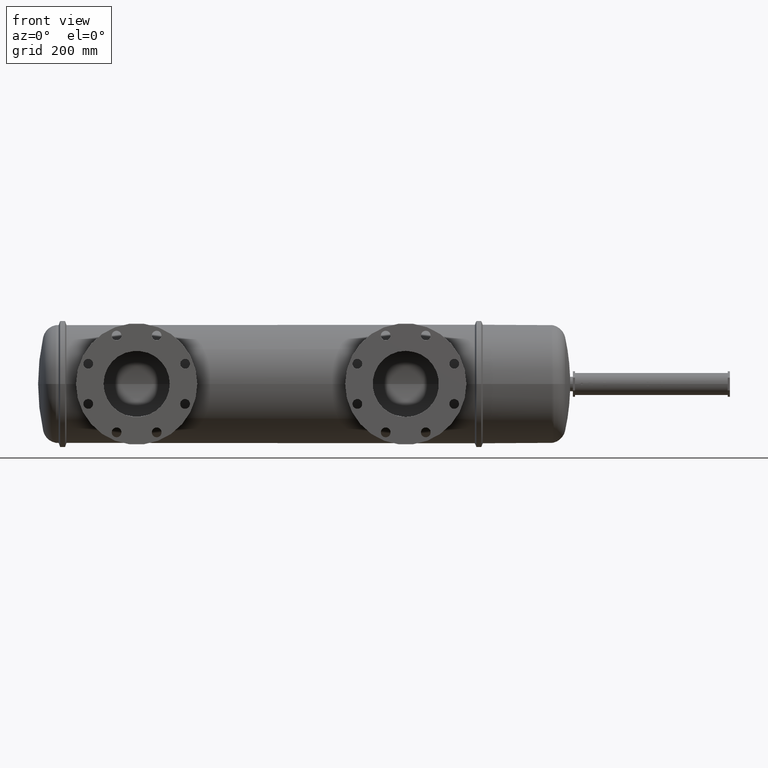
[diagram: clean part render]
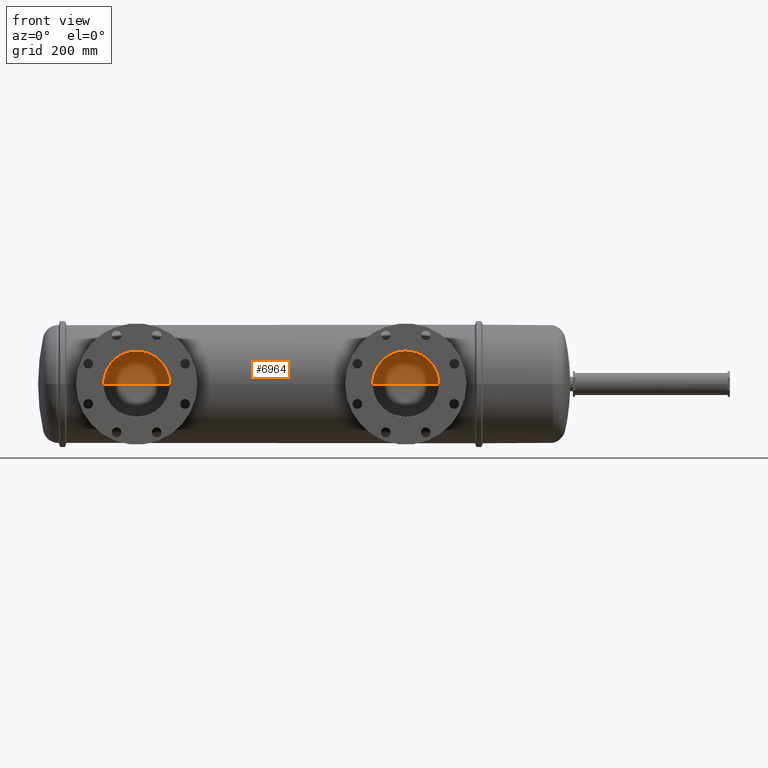
[diagram: same view with one face highlighted and labeled with its STEP entity id]
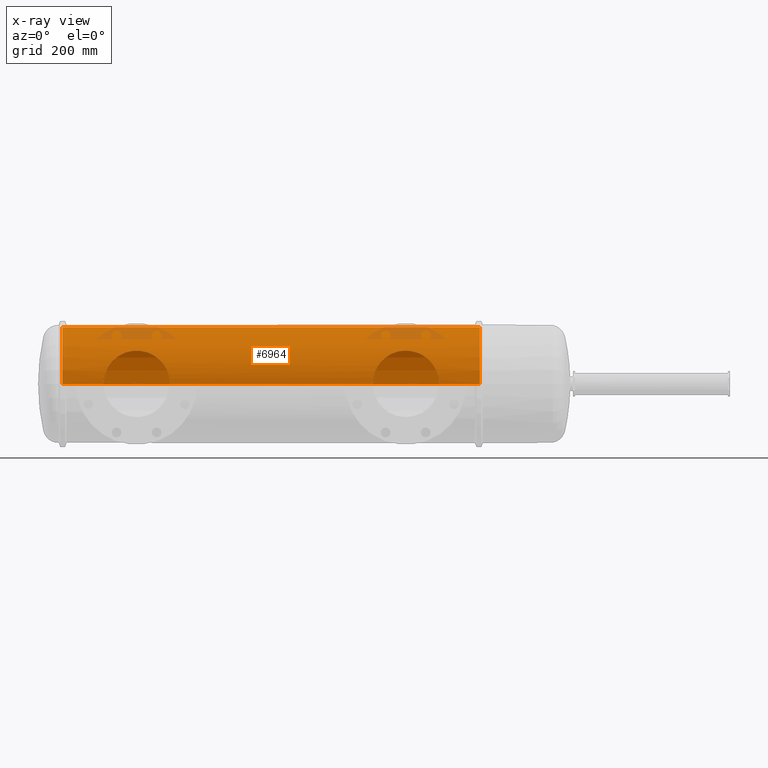
[diagram: x-ray of the same camera — body ghosted, the highlighted face saturated]
A machine part, front view. The second image highlights one B-rep face of the part: STEP entity #6964.
The next image is the same camera in x-ray: the body ghosted, the highlighted face saturated — about 5% of this face is hidden behind the body in this view.
In plain terms, the highlighted cylindrical surface (partial cylindrical patch) has radius 131.525 mm, axis along (-1, 0, -0).
Its self-contained STEP definition (entity closure, byte-faithful):
#51 = AXIS2_PLACEMENT_3D ( 'NONE', #4150, #1862, #4810 ) ;
#107 = CARTESIAN_POINT ( 'NONE',  ( 6.132129783622352700, -5.065000427486103800, 1.077668649765737500 ) ) ;
#116 = CARTESIAN_POINT ( 'NONE',  ( 31.08207429958778400, -4.782900594347088600, 1.984608928514451700 ) ) ;
#123 = CARTESIAN_POINT ( 'NONE',  ( 7.680447414336992300, -4.401476452006323600, 2.728061524933107100 ) ) ;
#131 = CIRCLE ( 'NONE', #4980, 5.178157746037729000 ) ;
#136 = CARTESIAN_POINT ( 'NONE',  ( 30.33877663524508600, -5.174424441765539800, 0.2030311780407423900 ) ) ;
#161 = CARTESIAN_POINT ( 'NONE',  ( 6.780909866095179000, -4.737193259626786300, 2.091337066775493400 ) ) ;
#187 = CARTESIAN_POINT ( 'NONE',  ( 35.70349834805749400, -4.840983310612136500, 1.838450758542728800 ) ) ;
#188 = CARTESIAN_POINT ( 'NONE',  ( 9.773907009270043700, -4.303604707897933100, 2.879647268780590500 ) ) ;
#209 = CARTESIAN_POINT ( 'NONE',  ( 10.27460988128345500, -4.428161929314297800, 2.684682270122831200 ) ) ;
#219 = CARTESIAN_POINT ( 'NONE',  ( 31.50031156164127900, -4.600552062556505300, 2.377571081990475400 ) ) ;
#230 = CARTESIAN_POINT ( 'NONE',  ( 36.33232943053631900, -5.178157431407109700, 2.221053218578038600E-019 ) ) ;
#231 = CARTESIAN_POINT ( 'NONE',  ( 11.30407828064480200, -4.841267513393175300, 1.837701983748043300 ) ) ;
#252 = CARTESIAN_POINT ( 'NONE',  ( 2.187117406565378900, 5.178158060668375900, 6.341414309165197300E-016 ) ) ;
#285 = CARTESIAN_POINT ( 'NONE',  ( 11.82758132356946700, -5.118124783114869700, 0.7921348580052330900 ) ) ;
#333 = CARTESIAN_POINT ( 'NONE',  ( 11.76729472960408500, -5.084303519518370800, 0.9825648947260339200 ) ) ;
#352 = CARTESIAN_POINT ( 'NONE',  ( 32.68661176408697600, -4.269418511876872400, 2.930106692608607700 ) ) ;
#378 = EDGE_CURVE ( 'NONE', #5034, #2015, #4202, .T. ) ;
#632 = CARTESIAN_POINT ( 'NONE',  ( 40.05530189597459400, 3.146306162045461400E-007, 0.0000000000000000000 ) ) ;
#668 = CARTESIAN_POINT ( 'NONE',  ( 5.933620563382050700, -5.177409084163037400, 0.1016249666666535200 ) ) ;
#679 = VERTEX_POINT ( 'NONE', #6874 ) ;
#705 = CARTESIAN_POINT ( 'NONE',  ( 8.960113369240108500, -4.220597372991298000, 2.999978800376406500 ) ) ;
#728 = CARTESIAN_POINT ( 'NONE',  ( 34.17205102720927100, -4.303242060481991900, 2.880189127126532500 ) ) ;
#729 = CARTESIAN_POINT ( 'NONE',  ( 7.860436805809033700, -4.353704193452843500, 2.803671604763812400 ) ) ;
#744 = CARTESIAN_POINT ( 'NONE',  ( 35.67364830612081800, -4.826423713049392100, 1.876309036350974900 ) ) ;
#745 = CARTESIAN_POINT ( 'NONE',  ( 7.298388119595737000, -4.525670459833230000, 2.516458799455258100 ) ) ;
#775 = CARTESIAN_POINT ( 'NONE',  ( 35.58169561753253200, -4.782266364031826800, 1.987357659064009000 ) ) ;
#792 = CARTESIAN_POINT ( 'NONE',  ( 30.37302067367088700, -5.154663506644064700, 0.5023953184371360300 ) ) ;
#800 = DIRECTION ( 'NONE',  ( -1.000000000000000000, 8.273921759108280900E-016, -0.0000000000000000000 ) ) ;
#801 = ORIENTED_EDGE ( 'NONE', *, *, #3430, .F. ) ;
#802 = CARTESIAN_POINT ( 'NONE',  ( 11.39037880817580900, -4.884134477862518900, 1.720570218087032800 ) ) ;
#815 = CARTESIAN_POINT ( 'NONE',  ( 32.25877537387184900, -4.354115088078390100, 2.803033949583300500 ) ) ;
#823 = CARTESIAN_POINT ( 'NONE',  ( 36.16713495678045800, -5.084214396202776600, 0.9830268976330951400 ) ) ;
#824 = CARTESIAN_POINT ( 'NONE',  ( 10.68491040287784500, -4.569855752310315800, 2.435322389492509100 ) ) ;
#835 = CARTESIAN_POINT ( 'NONE',  ( 31.99135847542118000, -4.427751050239586500, 2.685369627902153900 ) ) ;
#845 = CARTESIAN_POINT ( 'NONE',  ( 11.73325056874330700, -5.065399615629425900, 1.075780087569782500 ) ) ;
#967 = ORIENTED_EDGE ( 'NONE', *, *, #2066, .T. ) ;
#1035 = EDGE_CURVE ( 'NONE', #3441, #3276, #2185, .T. ) ;
#1036 = DIRECTION ( 'NONE',  ( -8.441142592087756100E-016, -1.000000000000000000, 0.0000000000000000000 ) ) ;
#1096 = CYLINDRICAL_SURFACE ( 'NONE', #51, 5.178157746037729000 ) ;
#1176 = DIRECTION ( 'NONE',  ( -1.000000000000000000, 8.273921759108280900E-016, -0.0000000000000000000 ) ) ;
#1219 = CARTESIAN_POINT ( 'NONE',  ( 8.732626623186558100, -4.224137485806221700, 2.995016964675891700 ) ) ;
#1223 = ORIENTED_EDGE ( 'NONE', *, *, #7176, .T. ) ;
#1244 = CARTESIAN_POINT ( 'NONE',  ( 5.942638784679549400, -5.172189791694425900, 0.2535430016418686600 ) ) ;
#1266 = CARTESIAN_POINT ( 'NONE',  ( 9.036165591199043900, -4.221783555818104700, 2.998309399489690600 ) ) ;
#1274 = CARTESIAN_POINT ( 'NONE',  ( 30.35789871826110100, -5.163379065188957300, 0.4035950930598792800 ) ) ;
#1285 = CARTESIAN_POINT ( 'NONE',  ( 36.29188997538356900, -5.154808179985380400, 0.5009137549546651700 ) ) ;
#1286 = CARTESIAN_POINT ( 'NONE',  ( 6.150312574428442100, -5.054965326579143400, 1.123746928113599400 ) ) ;
#1306 = CARTESIAN_POINT ( 'NONE',  ( 30.33232943053631200, -5.178157431407103500, 0.05079185256833555100 ) ) ;
#1320 = CARTESIAN_POINT ( 'NONE',  ( 9.916554410793496600, -4.332825831696729900, 2.835698707943691900 ) ) ;
#1357 = CARTESIAN_POINT ( 'NONE',  ( 35.08379632791847800, -4.569428370642675000, 2.436124161706173700 ) ) ;
#1368 = CARTESIAN_POINT ( 'NONE',  ( 32.49331835164987600, -4.302917681004957200, 2.880715972374405800 ) ) ;
#1384 = CARTESIAN_POINT ( 'NONE',  ( 36.30692985252759500, -5.163476919684364400, 0.4022573141267225000 ) ) ;
#1410 = CARTESIAN_POINT ( 'NONE',  ( 11.27425352614445100, -4.826717473442596600, 1.875553018355759600 ) ) ;
#1421 = CARTESIAN_POINT ( 'NONE',  ( 32.63808035161984100, -4.277035690248133000, 2.918990048941128500 ) ) ;
#1491 = EDGE_LOOP ( 'NONE', ( #4512, #4145, #967, #4813, #3066, #4301, #801, #2473, #1223 ) ) ;
#1595 = VERTEX_POINT ( 'NONE', #3810 ) ;
#1728 = VECTOR ( 'NONE', #1176, 39.37007874015748100 ) ;
#1763 = CARTESIAN_POINT ( 'NONE',  ( 5.932329430536313500, -5.178157431407084000, 0.05081678761601077200 ) ) ;
#1781 = CARTESIAN_POINT ( 'NONE',  ( 10.52582391728174500, -4.510768448560307700, 2.543624729198071100 ) ) ;
#1787 = CARTESIAN_POINT ( 'NONE',  ( 40.05530189597459400, -5.178157431407112400, 0.0000000000000000000 ) ) ;
#1799 = CARTESIAN_POINT ( 'NONE',  ( 9.581099392375374900, -4.269881656913376000, 2.929431962233594300 ) ) ;
#1808 = FACE_OUTER_BOUND ( 'NONE', #1491, .T. ) ;
#1810 = VECTOR ( 'NONE', #4370, 39.37007874015748100 ) ;
#1831 = CARTESIAN_POINT ( 'NONE',  ( 9.629574187749932800, -4.277523884038719100, 2.918274783802058200 ) ) ;
#1843 = CARTESIAN_POINT ( 'NONE',  ( 30.41283439087824900, -5.131909863703159900, 0.6974654743138624100 ) ) ;
#1857 = CARTESIAN_POINT ( 'NONE',  ( 8.240030918852042400, -4.276719137574667200, 2.919453665659927000 ) ) ;
#1862 = DIRECTION ( 'NONE',  ( -1.000000000000000000, 8.273921759108280900E-016, -0.0000000000000000000 ) ) ;
#1879 = CARTESIAN_POINT ( 'NONE',  ( 34.40699041287948000, -4.354394624027480500, 2.802597554749298900 ) ) ;
#1880 = CARTESIAN_POINT ( 'NONE',  ( 7.422523259511749000, -4.482332475924586400, 2.592845623736451900 ) ) ;
#1901 = CARTESIAN_POINT ( 'NONE',  ( 33.35772971648583500, -4.220582304256315500, 3.000000000000002200 ) ) ;
#1902 = CARTESIAN_POINT ( 'NONE',  ( 11.93232943053631500, -5.178157431407088400, 3.676161461902457600E-016 ) ) ;
#1921 = CARTESIAN_POINT ( 'NONE',  ( 30.33232943053631200, -5.178157431407103500, -1.965551293642552400E-019 ) ) ;
#1937 = CARTESIAN_POINT ( 'NONE',  ( 11.93232943053631900, -5.178157431407088400, 0.05054794162473737200 ) ) ;
#1951 = CARTESIAN_POINT ( 'NONE',  ( 33.33232943053631200, -4.220582304256315500, 3.000000000000001800 ) ) ;
#1962 = CARTESIAN_POINT ( 'NONE',  ( 33.58476294212965700, -4.227832472132765100, 2.989780209850776000 ) ) ;
#1989 = CARTESIAN_POINT ( 'NONE',  ( 33.23082794620027200, -4.220582304256316400, 3.000000000000003100 ) ) ;
#2015 = VERTEX_POINT ( 'NONE', #252 ) ;
#2066 = EDGE_CURVE ( 'NONE', #2283, #3276, #4925, .T. ) ;
#2168 = LINE ( 'NONE', #4968, #5383 ) ;
#2185 = B_SPLINE_CURVE_WITH_KNOTS ( 'NONE', 3,
 ( #6576, #1901, #4854, #5938, #4805, #6036, #1962, #7127, #3702, #6624, #4205, #7198, #3676, #728, #6603, #5981, #1879, #5964, #6000, #3139, #3042, #7096, #1357, #2430, #6545, #2495, #7150, #4235, #775, #744, #187, #2536, #3625, #3115, #3642, #4277, #4161, #7168, #3715, #823, #4881, #6522, #5432, #1285, #1384, #5354, #5452, #4823, #2466, #230 ),
 .UNSPECIFIED., .F., .F.,
 ( 4, 2, 2, 2, 2, 2, 2, 2, 2, 2, 2, 2, 2, 2, 2, 2, 2, 2, 2, 2, 2, 2, 2, 2, 4 ),
 ( 0.1254851167505265400, 0.1274219353923867200, 0.1293587540342469000, 0.1332323913179672700, 0.1409796658854080000, 0.1448533031691285300, 0.1467901218109887700, 0.1487269404528490400, 0.1564742150202900200, 0.1642214895877310300, 0.1719687641551720400, 0.1758424014388925400, 0.1797160387226130500, 0.1874633132900538100, 0.1952105878574945700, 0.1990842251412149600, 0.2029578624249353500, 0.2107051369923761400, 0.2184524115598169300, 0.2223260488435374000, 0.2261996861272578800, 0.2339469606946989500, 0.2416942352621400100, 0.2455678725458604900, 0.2494415098295809900 ),
 .UNSPECIFIED. ) ;
#2219 = AXIS2_PLACEMENT_3D ( 'NONE', #632, #4075, #2272 ) ;
#2272 = DIRECTION ( 'NONE',  ( 0.0000000000000000000, -1.000000000000000000, 0.0000000000000000000 ) ) ;
#2283 = VERTEX_POINT ( 'NONE', #1787 ) ;
#2302 = CARTESIAN_POINT ( 'NONE',  ( 5.449043687918921900E-006, -5.178157431407078600, 0.0000000000000000000 ) ) ;
#2361 = CARTESIAN_POINT ( 'NONE',  ( 7.952785157509903300, -4.331765243466740900, 2.837316004244636600 ) ) ;
#2394 = CARTESIAN_POINT ( 'NONE',  ( 5.957923580181439900, -5.163364730206655700, 0.4037903958673881900 ) ) ;
#2398 = B_SPLINE_CURVE_WITH_KNOTS ( 'NONE', 3,
 ( #5810, #1763, #668, #4745, #1244, #2394, #2976, #6523, #7128, #3533, #4206, #107, #1286, #2955, #7047, #3004, #2413, #3603, #5355, #4723, #6493, #3643, #161, #3570, #7069, #6546, #4162, #745, #5306, #1880, #5884, #5965, #123, #729, #2361, #2431, #4146, #1857, #4703, #4125, #7021, #1219, #5939, #705, #6434, #1266, #3069, #5270, #5328, #3043, #7097, #1799, #1831, #5902, #3626, #188, #4806, #1320, #5379, #2467, #209, #4236, #1781, #5861, #824, #4897, #7151, #6078, #3677, #4914, #5453, #1410, #231, #4254, #802, #2519, #7199, #6604, #3116, #6577, #845, #333, #4278, #285, #6037, #3140, #7245, #4335, #2594, #6685, #1937, #1902 ),
 .UNSPECIFIED., .F., .F.,
 ( 4, 2, 2, 2, 2, 2, 2, 2, 2, 2, 2, 2, 2, 2, 2, 2, 2, 2, 2, 2, 2, 2, 2, 2, 2, 2, 2, 2, 2, 2, 2, 2, 2, 2, 2, 2, 2, 2, 2, 2, 2, 2, 2, 2, 2, 4 ),
 ( 0.001650311155501412500, 0.005522048634783895500, 0.009393786114066379100, 0.01713726107263134300, 0.02488073603119630600, 0.02875247351047879500, 0.03262421098976128100, 0.04036768594832623000, 0.04811116090689117300, 0.05585463586545610200, 0.05972637334473854300, 0.06359811082402099000, 0.07134158578258592600, 0.07908506074115084800, 0.08295679822043335000, 0.08682853569971586700, 0.09457201065828081700, 0.1023154856168457500, 0.1061872230961281900, 0.1100589605754106300, 0.1178024355339756000, 0.1255459104925405500, 0.1274817792321817900, 0.1294176479718230400, 0.1332893854511056100, 0.1410328604096708100, 0.1449045978889534100, 0.1468404666285946800, 0.1487763353682359500, 0.1565198103268010100, 0.1642632852853660500, 0.1720067602439311100, 0.1758784977232135400, 0.1797502352024960000, 0.1874937101610610100, 0.1952371851196260400, 0.1991089225989085600, 0.2029806600781910400, 0.2107241350367561300, 0.2184676099953212200, 0.2223393474746037400, 0.2262110849538862300, 0.2339545599124512300, 0.2416980348710162100, 0.2455697723502987500, 0.2494415098295812400 ),
 .UNSPECIFIED. ) ;
#2403 = CARTESIAN_POINT ( 'NONE',  ( 30.74240179073791200, -4.951717250540275100, 1.517117393343673700 ) ) ;
#2413 = CARTESIAN_POINT ( 'NONE',  ( 6.392882950998162200, -4.925438491008159200, 1.600150941068455300 ) ) ;
#2422 = CARTESIAN_POINT ( 'NONE',  ( 30.79245582446174000, -4.925659141234051600, 1.599470051346641600 ) ) ;
#2430 = CARTESIAN_POINT ( 'NONE',  ( 35.16138252440735100, -4.599725485607052600, 2.378424269064485200 ) ) ;
#2431 = CARTESIAN_POINT ( 'NONE',  ( 8.095174384245508400, -4.302555701337427200, 2.881256444879602100 ) ) ;
#2466 = CARTESIAN_POINT ( 'NONE',  ( 36.33232943053630500, -5.178157431407110600, 0.05057274475365461400 ) ) ;
#2467 = CARTESIAN_POINT ( 'NONE',  ( 10.18767493473605500, -4.402472309595165900, 2.726452971105715500 ) ) ;
#2473 = ORIENTED_EDGE ( 'NONE', *, *, #6618, .T. ) ;
#2482 = CARTESIAN_POINT ( 'NONE',  ( 30.49769194920315800, -5.084120502473656000, 0.9835222085378513300 ) ) ;
#2495 = CARTESIAN_POINT ( 'NONE',  ( 35.31084965528303600, -4.660823106017251600, 2.257144114654325900 ) ) ;
#2519 = CARTESIAN_POINT ( 'NONE',  ( 11.47215404985069800, -4.925628567211457900, 1.599614133549825500 ) ) ;
#2536 = CARTESIAN_POINT ( 'NONE',  ( 35.76157764087997000, -4.869694469635412300, 1.760993003832504800 ) ) ;
#2594 = CARTESIAN_POINT ( 'NONE',  ( 11.92592585846199800, -5.174449691877492300, 0.2023137012950311800 ) ) ;
#2603 = CARTESIAN_POINT ( 'NONE',  ( 31.86332709210497400, -4.468741215612150900, 2.616177634434193600 ) ) ;
#2604 = CARTESIAN_POINT ( 'NONE',  ( 40.05530189597459400, 5.178158060668344800, 6.341414309165177500E-016 ) ) ;
#2955 = CARTESIAN_POINT ( 'NONE',  ( 6.207883313296466800, -5.023434078467797500, 1.259798848510733900 ) ) ;
#2976 = CARTESIAN_POINT ( 'NONE',  ( 5.973060125111573800, -5.154640807257831800, 0.5026372187685241900 ) ) ;
#3004 = CARTESIAN_POINT ( 'NONE',  ( 6.342783761968198600, -4.951517185594962500, 1.517772143968418200 ) ) ;
#3026 = CARTESIAN_POINT ( 'NONE',  ( 31.05029742356694900, -4.797942777885779700, 1.947991097990023500 ) ) ;
#3042 = CARTESIAN_POINT ( 'NONE',  ( 34.92458667988656600, -4.510330461275122700, 2.544401063597741400 ) ) ;
#3043 = CARTESIAN_POINT ( 'NONE',  ( 9.336384011788947400, -4.238715333571161800, 2.974350663147551400 ) ) ;
#3066 = ORIENTED_EDGE ( 'NONE', *, *, #3880, .F. ) ;
#3069 = CARTESIAN_POINT ( 'NONE',  ( 9.061408206097903300, -4.222480726134494800, 2.997327814610315100 ) ) ;
#3111 = CARTESIAN_POINT ( 'NONE',  ( 5.449043696487656300E-006, 5.178158060668378600, 6.341414309165177500E-016 ) ) ;
#3115 = CARTESIAN_POINT ( 'NONE',  ( 35.87172324828181000, -4.925406004625007700, 1.600300953275943600 ) ) ;
#3116 = CARTESIAN_POINT ( 'NONE',  ( 11.65780006218006700, -5.023990546692352200, 1.257567132194306700 ) ) ;
#3139 = CARTESIAN_POINT ( 'NONE',  ( 34.84238309174961000, -4.481869228889935100, 2.594028373614108800 ) ) ;
#3140 = CARTESIAN_POINT ( 'NONE',  ( 11.89192918745933600, -5.154830743328325600, 0.5006723563388272300 ) ) ;
#3225 = CARTESIAN_POINT ( 'NONE',  ( 30.33232943053631200, -5.178157431407103500, -1.965551293642552400E-019 ) ) ;
#3276 = VERTEX_POINT ( 'NONE', #3913 ) ;
#3373 = DIRECTION ( 'NONE',  ( -1.000000000000000000, 8.273921759108280900E-016, -0.0000000000000000000 ) ) ;
#3430 = EDGE_CURVE ( 'NONE', #1595, #5260, #2398, .T. ) ;
#3441 = VERTEX_POINT ( 'NONE', #3777 ) ;
#3533 = CARTESIAN_POINT ( 'NONE',  ( 6.081881646681528000, -5.092957692427448000, 0.9367093237544839000 ) ) ;
#3544 = CARTESIAN_POINT ( 'NONE',  ( 30.60762270747199000, -5.023575612418049700, 1.259231670353233100 ) ) ;
#3570 = CARTESIAN_POINT ( 'NONE',  ( 6.882759764117143900, -4.691520777707878200, 2.192818200173287200 ) ) ;
#3603 = CARTESIAN_POINT ( 'NONE',  ( 6.500721261454039300, -4.870715987270087600, 1.759702579612058200 ) ) ;
#3625 = CARTESIAN_POINT ( 'NONE',  ( 35.78987178335368900, -4.883879215012683500, 1.721295038560735500 ) ) ;
#3626 = CARTESIAN_POINT ( 'NONE',  ( 9.725945620869969900, -4.294483359394158500, 2.893232544415179000 ) ) ;
#3635 = CARTESIAN_POINT ( 'NONE',  ( 30.90019612323288800, -4.870978597745153000, 1.758974120188926000 ) ) ;
#3642 = CARTESIAN_POINT ( 'NONE',  ( 35.92221386087485500, -4.951693001148214500, 1.517225759285674400 ) ) ;
#3643 = CARTESIAN_POINT ( 'NONE',  ( 6.747699700264759800, -4.752377882352123900, 2.056627270838623300 ) ) ;
#3661 = CARTESIAN_POINT ( 'NONE',  ( 30.95788184332292300, -4.842354460542809500, 1.836125336217657100 ) ) ;
#3676 = CARTESIAN_POINT ( 'NONE',  ( 34.12405944598054200, -4.294135104333387100, 2.893749358631729300 ) ) ;
#3677 = CARTESIAN_POINT ( 'NONE',  ( 10.98263013096593400, -4.691843071951670800, 2.192120434828105100 ) ) ;
#3702 = CARTESIAN_POINT ( 'NONE',  ( 33.83282305937946400, -4.249056778453596200, 2.959630438224571100 ) ) ;
#3715 = CARTESIAN_POINT ( 'NONE',  ( 36.13305946191818700, -5.065293908108536400, 1.076278562645460700 ) ) ;
#3777 = CARTESIAN_POINT ( 'NONE',  ( 33.33232943053631200, -4.220582304256315500, 3.000000000000001800 ) ) ;
#3810 = CARTESIAN_POINT ( 'NONE',  ( 5.932329430536313500, -5.178157431407083100, -1.965581824423035500E-019 ) ) ;
#3880 = EDGE_CURVE ( 'NONE', #4034, #3441, #5909, .T. ) ;
#3913 = CARTESIAN_POINT ( 'NONE',  ( 36.33232943053631900, -5.178157431407109700, 2.221053218578038600E-019 ) ) ;
#4034 = VERTEX_POINT ( 'NONE', #3225 ) ;
#4075 = DIRECTION ( 'NONE',  ( -1.000000000000000000, 8.273921759108280900E-016, -0.0000000000000000000 ) ) ;
#4085 = CIRCLE ( 'NONE', #2219, 5.178157746037729000 ) ;
#4125 = CARTESIAN_POINT ( 'NONE',  ( 8.434992995686151600, -4.248684298821837400, 2.960164227454401300 ) ) ;
#4128 = CARTESIAN_POINT ( 'NONE',  ( 11.93232943053631500, -5.178157431407088400, 3.676161461902457600E-016 ) ) ;
#4145 = ORIENTED_EDGE ( 'NONE', *, *, #7291, .F. ) ;
#4146 = CARTESIAN_POINT ( 'NONE',  ( 8.143379717564069900, -4.293424156952618800, 2.894830787043771700 ) ) ;
#4150 = CARTESIAN_POINT ( 'NONE',  ( 5.449043692203289100E-006, 3.146306493459850400E-007, 0.0000000000000000000 ) ) ;
#4153 = CARTESIAN_POINT ( 'NONE',  ( 31.14695604173982300, -4.752719937940477200, 2.055836546284654600 ) ) ;
#4161 = CARTESIAN_POINT ( 'NONE',  ( 36.05753977345992200, -5.023849155272357000, 1.258134621923322300 ) ) ;
#4162 = CARTESIAN_POINT ( 'NONE',  ( 7.178241638201555500, -4.569966650197350200, 2.435670832563007000 ) ) ;
#4178 = CARTESIAN_POINT ( 'NONE',  ( 31.18013866208647800, -4.737543732078154200, 2.090542910626461900 ) ) ;
#4202 = LINE ( 'NONE', #3111, #4664 ) ;
#4205 = CARTESIAN_POINT ( 'NONE',  ( 34.02762713474671600, -4.277206567737190200, 2.918739687401524100 ) ) ;
#4206 = CARTESIAN_POINT ( 'NONE',  ( 6.097852925780145500, -5.084030715081987700, 0.9839871570555395200 ) ) ;
#4235 = CARTESIAN_POINT ( 'NONE',  ( 35.51719810145904400, -4.752189247152201400, 2.058028865838323900 ) ) ;
#4236 = CARTESIAN_POINT ( 'NONE',  ( 10.44368471870454800, -4.482309230382465900, 2.593268380421846600 ) ) ;
#4246 = CARTESIAN_POINT ( 'NONE',  ( 30.34262872094329200, -5.172195612104359500, 0.2534194790776209700 ) ) ;
#4254 = CARTESIAN_POINT ( 'NONE',  ( 11.36210841277717500, -4.869959385121192400, 1.760260005375047900 ) ) ;
#4277 = CARTESIAN_POINT ( 'NONE',  ( 36.01512204027263700, -5.000913753604781000, 1.346142332851178800 ) ) ;
#4278 = CARTESIAN_POINT ( 'NONE',  ( 11.78329391746057400, -5.093246880023899700, 0.9351426541664310500 ) ) ;
#4301 = ORIENTED_EDGE ( 'NONE', *, *, #7296, .T. ) ;
#4335 = CARTESIAN_POINT ( 'NONE',  ( 11.92210787302647500, -5.172240570140079500, 0.2524620442872648200 ) ) ;
#4370 = DIRECTION ( 'NONE',  ( -1.000000000000000000, 8.273921759108280900E-016, -0.0000000000000000000 ) ) ;
#4512 = ORIENTED_EDGE ( 'NONE', *, *, #378, .F. ) ;
#4664 = VECTOR ( 'NONE', #800, 39.37007874015748100 ) ;
#4703 = CARTESIAN_POINT ( 'NONE',  ( 8.288592553527793800, -4.269119003536532700, 2.930542915384770200 ) ) ;
#4723 = CARTESIAN_POINT ( 'NONE',  ( 6.650961392141978100, -4.797626860696730900, 1.948769289121272900 ) ) ;
#4731 = CARTESIAN_POINT ( 'NONE',  ( 30.48173709335149800, -5.093038626794083300, 0.9362680116066657300 ) ) ;
#4745 = CARTESIAN_POINT ( 'NONE',  ( 5.938782951778238200, -5.174420786637827300, 0.2031304588551747500 ) ) ;
#4793 = CARTESIAN_POINT ( 'NONE',  ( 31.28190372326666900, -4.691895529833639800, 2.192015848221161800 ) ) ;
#4805 = CARTESIAN_POINT ( 'NONE',  ( 33.45909394649512300, -4.222410512409089400, 2.997426713704395500 ) ) ;
#4806 = CARTESIAN_POINT ( 'NONE',  ( 9.797854853850722600, -4.308353463059212600, 2.872539575875527400 ) ) ;
#4810 = DIRECTION ( 'NONE',  ( -8.273921871325367800E-016, -1.000000000000000000, 0.0000000000000000000 ) ) ;
#4813 = ORIENTED_EDGE ( 'NONE', *, *, #1035, .F. ) ;
#4823 = CARTESIAN_POINT ( 'NONE',  ( 36.33103793433871700, -5.177408880985738400, 0.1014898886268503600 ) ) ;
#4833 = CARTESIAN_POINT ( 'NONE',  ( 31.57713367408557700, -4.570393222809987500, 2.434870364100072400 ) ) ;
#4854 = CARTESIAN_POINT ( 'NONE',  ( 33.38317441279975400, -4.220812575010731000, 2.999676118577597100 ) ) ;
#4870 = CARTESIAN_POINT ( 'NONE',  ( 32.35104844279769800, -4.332160138887577000, 2.836713598347835300 ) ) ;
#4881 = CARTESIAN_POINT ( 'NONE',  ( 36.18314907309071100, -5.093165775197388000, 0.9355854629688539200 ) ) ;
#4892 = CARTESIAN_POINT ( 'NONE',  ( 31.82120554259653000, -4.482776793228620000, 2.592077454290751400 ) ) ;
#4897 = CARTESIAN_POINT ( 'NONE',  ( 10.76243709810133400, -4.600145170332171900, 2.377612485350967500 ) ) ;
#4914 = CARTESIAN_POINT ( 'NONE',  ( 11.11793646571481300, -4.752529486880942700, 2.057242535714107800 ) ) ;
#4925 = LINE ( 'NONE', #6073, #1810 ) ;
#4968 = CARTESIAN_POINT ( 'NONE',  ( 5.449043687918921900E-006, -5.178157431407078600, 0.0000000000000000000 ) ) ;
#4980 = AXIS2_PLACEMENT_3D ( 'NONE', #6867, #3373, #1036 ) ;
#5034 = VERTEX_POINT ( 'NONE', #2604 ) ;
#5260 = VERTEX_POINT ( 'NONE', #4128 ) ;
#5270 = CARTESIAN_POINT ( 'NONE',  ( 9.136927139915636400, -4.225238913083443600, 2.993439695645332400 ) ) ;
#5306 = CARTESIAN_POINT ( 'NONE',  ( 7.339309443981237600, -4.511042275368556200, 2.542567683470628100 ) ) ;
#5328 = CARTESIAN_POINT ( 'NONE',  ( 9.186994636169473000, -4.227966709781679100, 2.989590461257060700 ) ) ;
#5342 = CARTESIAN_POINT ( 'NONE',  ( 30.53193763208461700, -5.065106698767013200, 1.077168213618625400 ) ) ;
#5354 = CARTESIAN_POINT ( 'NONE',  ( 36.32209790013158800, -5.172234802184789300, 0.2525849412252650900 ) ) ;
#5355 = CARTESIAN_POINT ( 'NONE',  ( 6.558459832007116600, -4.842070470642900300, 1.836875228342040900 ) ) ;
#5365 = CARTESIAN_POINT ( 'NONE',  ( 31.35269606334977900, -4.661302182715983700, 2.256143934546237100 ) ) ;
#5379 = CARTESIAN_POINT ( 'NONE',  ( 10.00864634113221500, -4.354805187820399000, 2.801960036569220300 ) ) ;
#5383 = VECTOR ( 'NONE', #6739, 39.37007874015748100 ) ;
#5432 = CARTESIAN_POINT ( 'NONE',  ( 36.25216499328733000, -5.132103709164512800, 0.6960413026637787300 ) ) ;
#5442 = CARTESIAN_POINT ( 'NONE',  ( 32.83292071087925000, -4.248928890028522300, 2.959813688404828300 ) ) ;
#5452 = CARTESIAN_POINT ( 'NONE',  ( 36.32591960016762300, -5.174446070422492400, 0.2024124120628272600 ) ) ;
#5453 = CARTESIAN_POINT ( 'NONE',  ( 11.18237894071879500, -4.782588358271437000, 1.986581883220789500 ) ) ;
#5463 = CARTESIAN_POINT ( 'NONE',  ( 33.13036546612329400, -4.224246561040576600, 2.994863457050142200 ) ) ;
#5810 = CARTESIAN_POINT ( 'NONE',  ( 5.932329430536313500, -5.178157431407083100, -1.965581824423035500E-019 ) ) ;
#5861 = CARTESIAN_POINT ( 'NONE',  ( 10.64557233511249400, -4.554902760204356600, 2.463150748632407800 ) ) ;
#5884 = CARTESIAN_POINT ( 'NONE',  ( 7.464677105257643500, -4.468297290703503700, 2.616935658568639400 ) ) ;
#5902 = CARTESIAN_POINT ( 'NONE',  ( 9.701900956544712100, -4.290103917257647800, 2.899720530959202700 ) ) ;
#5909 = B_SPLINE_CURVE_WITH_KNOTS ( 'NONE', 3,
 ( #1921, #1306, #7140, #136, #4246, #1274, #792, #1843, #6534, #4731, #2482, #5342, #7117, #3544, #6477, #2403, #2422, #3635, #3661, #3026, #116, #4153, #4178, #4793, #5365, #219, #4833, #5991, #6593, #4892, #2603, #835, #6613, #815, #4870, #1368, #6088, #1421, #352, #5442, #6664, #5463, #1989, #1951 ),
 .UNSPECIFIED., .F., .F.,
 ( 4, 2, 2, 2, 2, 2, 2, 2, 2, 2, 2, 2, 2, 2, 2, 2, 2, 2, 2, 2, 2, 4 ),
 ( 0.001650311155501183100, 0.005520148830345624600, 0.009389986505190066300, 0.01712966185487891500, 0.02486933720456776700, 0.02873917487941217800, 0.03260901255425659900, 0.04034868790394553800, 0.04808836325363448300, 0.05582803860332342900, 0.05969787627816800600, 0.06356771395301258300, 0.07130738930270152900, 0.07904706465239048900, 0.08291690232723494800, 0.08678674000207942100, 0.09452641535176864500, 0.1022660907014578800, 0.1061359283763026600, 0.1100057660511474200, 0.1177454414008369800, 0.1254851167505265400 ),
 .UNSPECIFIED. ) ;
#5938 = CARTESIAN_POINT ( 'NONE',  ( 33.43383463963163400, -4.221726766152158000, 2.998389354488947100 ) ) ;
#5939 = CARTESIAN_POINT ( 'NONE',  ( 8.833153774501305100, -4.220525418515463500, 3.000080030361530300 ) ) ;
#5964 = CARTESIAN_POINT ( 'NONE',  ( 34.58616784382135700, -4.402041236907673600, 2.727148421745390300 ) ) ;
#5965 = CARTESIAN_POINT ( 'NONE',  ( 7.592807393666659800, -4.427311163734506400, 2.686094389383298300 ) ) ;
#5981 = CARTESIAN_POINT ( 'NONE',  ( 34.31482019068133800, -4.332430300110102600, 2.836302407689552700 ) ) ;
#5991 = CARTESIAN_POINT ( 'NONE',  ( 31.69717382737860900, -4.526109307835450400, 2.515669416243088800 ) ) ;
#6000 = CARTESIAN_POINT ( 'NONE',  ( 34.67317332431911600, -4.427725387452569300, 2.685401816370157800 ) ) ;
#6036 = CARTESIAN_POINT ( 'NONE',  ( 33.53466265803063400, -4.225129459184652000, 2.993594136016384700 ) ) ;
#6037 = CARTESIAN_POINT ( 'NONE',  ( 11.85224265071244600, -5.132147942023572700, 0.6957084994603126600 ) ) ;
#6073 = CARTESIAN_POINT ( 'NONE',  ( 5.449043687918921900E-006, -5.178157431407078600, 0.0000000000000000000 ) ) ;
#6078 = CARTESIAN_POINT ( 'NONE',  ( 10.91176696512385500, -4.661213539850567000, 2.256337487586026000 ) ) ;
#6088 = CARTESIAN_POINT ( 'NONE',  ( 32.54148908271493900, -4.293772345768980300, 2.894314466959575500 ) ) ;
#6094 = LINE ( 'NONE', #2302, #1728 ) ;
#6434 = CARTESIAN_POINT ( 'NONE',  ( 8.985538956094949000, -4.220841823394682300, 2.999634969411982600 ) ) ;
#6477 = CARTESIAN_POINT ( 'NONE',  ( 30.64998573131145700, -5.000674578481464600, 1.346997640609046700 ) ) ;
#6493 = CARTESIAN_POINT ( 'NONE',  ( 6.682764229015726100, -4.782575880754347300, 1.985391445949922000 ) ) ;
#6522 = CARTESIAN_POINT ( 'NONE',  ( 36.22747975602956700, -5.118067212810978500, 0.7925123118075511100 ) ) ;
#6523 = CARTESIAN_POINT ( 'NONE',  ( 6.012912240755013300, -5.131865525531702100, 0.6977981568690444500 ) ) ;
#6534 = CARTESIAN_POINT ( 'NONE',  ( 30.43752679015381800, -5.117870858271349000, 0.7937351716618181700 ) ) ;
#6545 = CARTESIAN_POINT ( 'NONE',  ( 35.19942188798067000, -4.614997588561264400, 2.348675416882245200 ) ) ;
#6546 = CARTESIAN_POINT ( 'NONE',  ( 7.101353043962070900, -4.600136500437149500, 2.378375167529204900 ) ) ;
#6576 = CARTESIAN_POINT ( 'NONE',  ( 33.33232943053631200, -4.220582304256315500, 3.000000000000001800 ) ) ;
#6577 = CARTESIAN_POINT ( 'NONE',  ( 11.71516505273147300, -5.055416170187626800, 1.121713962569654800 ) ) ;
#6593 = CARTESIAN_POINT ( 'NONE',  ( 31.73805510674753400, -4.511485672661902600, 2.541780933568526200 ) ) ;
#6603 = CARTESIAN_POINT ( 'NONE',  ( 34.19601644886700600, -4.307984392795356500, 2.873093010932521900 ) ) ;
#6604 = CARTESIAN_POINT ( 'NONE',  ( 11.61542108551321000, -5.001074481893616600, 1.345542818510496500 ) ) ;
#6613 = CARTESIAN_POINT ( 'NONE',  ( 32.07892988452236000, -4.401909844547453200, 2.727362684563475100 ) ) ;
#6618 = EDGE_CURVE ( 'NONE', #1595, #679, #2168, .T. ) ;
#6624 = CARTESIAN_POINT ( 'NONE',  ( 33.97912157672473700, -4.269581209295708400, 2.929869701961757700 ) ) ;
#6664 = CARTESIAN_POINT ( 'NONE',  ( 32.93141179219601600, -4.238420048715704900, 2.974770851101541600 ) ) ;
#6685 = CARTESIAN_POINT ( 'NONE',  ( 11.93103920499881300, -5.177409617760223300, 0.1014401082616980900 ) ) ;
#6739 = DIRECTION ( 'NONE',  ( -1.000000000000000000, 8.273921759108280900E-016, -0.0000000000000000000 ) ) ;
#6867 = CARTESIAN_POINT ( 'NONE',  ( 2.187117406565374500, 3.146306475363857500E-007, 0.0000000000000000000 ) ) ;
#6874 = CARTESIAN_POINT ( 'NONE',  ( 2.187117406565370000, -5.178157431407081300, 0.0000000000000000000 ) ) ;
#6964 = ADVANCED_FACE ( 'NONE', ( #1808 ), #1096, .F. ) ;
#7021 = CARTESIAN_POINT ( 'NONE',  ( 8.533546176488945500, -4.238217120745322800, 2.975059620621266700 ) ) ;
#7047 = CARTESIAN_POINT ( 'NONE',  ( 6.250284441406962300, -5.000514069825657200, 1.347595535348985200 ) ) ;
#7069 = CARTESIAN_POINT ( 'NONE',  ( 6.953611579648247200, -4.660912527568047600, 2.256948965370939100 ) ) ;
#7096 = CARTESIAN_POINT ( 'NONE',  ( 35.04442793963829700, -4.554472176997869300, 2.463946767945124300 ) ) ;
#7097 = CARTESIAN_POINT ( 'NONE',  ( 9.434894096133914900, -4.249302765250051900, 2.959277799709656900 ) ) ;
#7117 = CARTESIAN_POINT ( 'NONE',  ( 30.55010395792491500, -5.055080189635696700, 1.123229362657219600 ) ) ;
#7127 = CARTESIAN_POINT ( 'NONE',  ( 33.73424958642222300, -4.238510799355076100, 2.974641778812264100 ) ) ;
#7128 = CARTESIAN_POINT ( 'NONE',  ( 6.037628448950330000, -5.117813243612864000, 0.7941120386759786800 ) ) ;
#7140 = CARTESIAN_POINT ( 'NONE',  ( 30.33361928243461500, -5.177409826910979600, 0.1015748252486117600 ) ) ;
#7150 = CARTESIAN_POINT ( 'NONE',  ( 35.38177476968865400, -4.691468615258099100, 2.192922188229713400 ) ) ;
#7151 = CARTESIAN_POINT ( 'NONE',  ( 10.80043846441279400, -4.615409201929853800, 2.347866391078100400 ) ) ;
#7168 = CARTESIAN_POINT ( 'NONE',  ( 36.11495734733542000, -5.055301790709303400, 1.122230106379826800 ) ) ;
#7176 = EDGE_CURVE ( 'NONE', #679, #2015, #131, .T. ) ;
#7198 = CARTESIAN_POINT ( 'NONE',  ( 34.09999961607839200, -4.289763163718934200, 2.900224569115822200 ) ) ;
#7199 = CARTESIAN_POINT ( 'NONE',  ( 11.52259816426840400, -4.951894313122815900, 1.516566580306238000 ) ) ;
#7245 = CARTESIAN_POINT ( 'NONE',  ( 11.90695453056287100, -5.163491149177159100, 0.4020626695308342500 ) ) ;
#7291 = EDGE_CURVE ( 'NONE', #2283, #5034, #4085, .T. ) ;
#7296 = EDGE_CURVE ( 'NONE', #4034, #5260, #6094, .T. ) ;